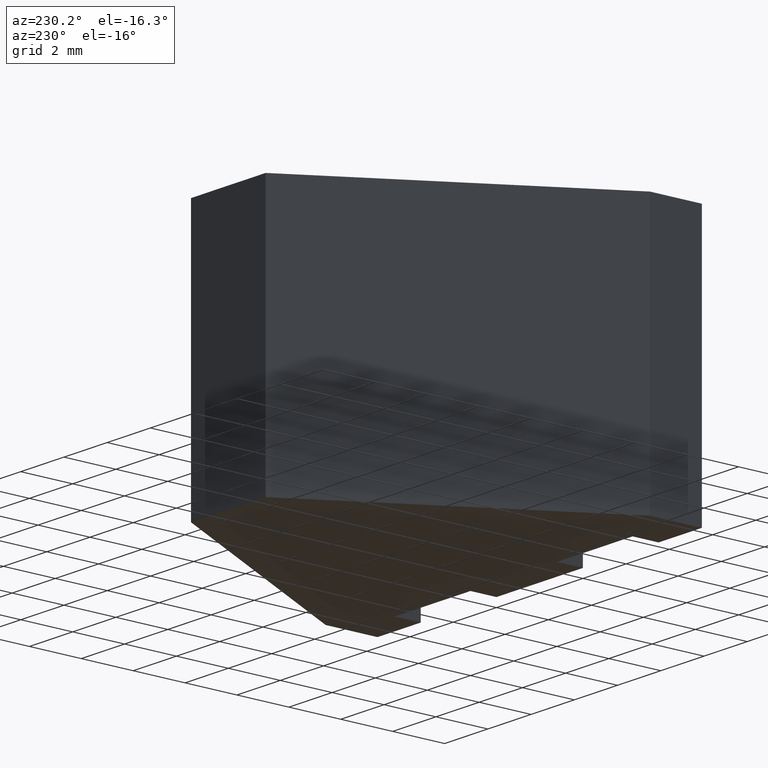
[diagram: clean part render]
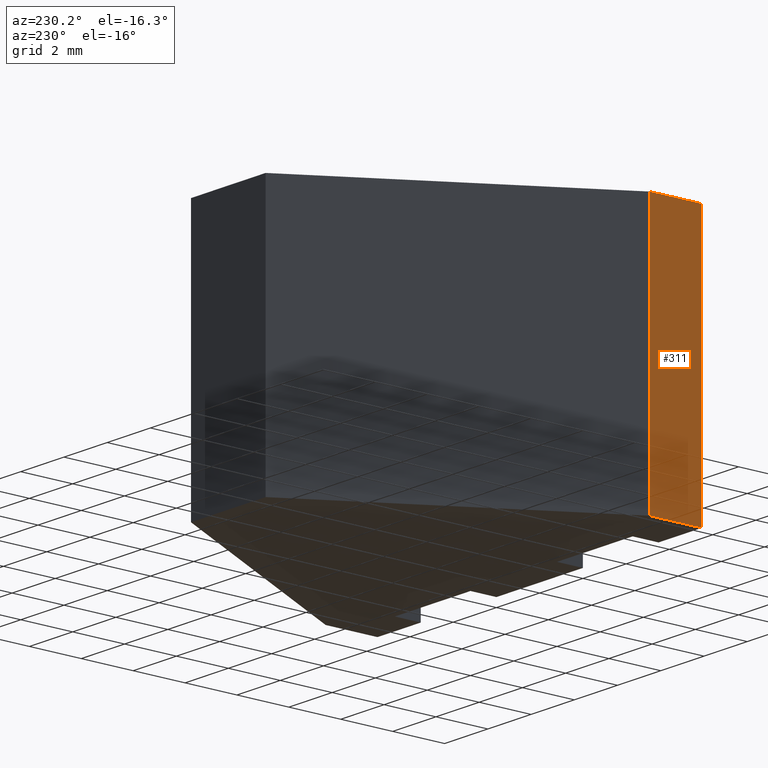
[diagram: same view with one face highlighted and labeled with its STEP entity id]
A machine part, auxiliary view. The second image highlights one B-rep face of the part: STEP entity #311.
In plain terms, the highlighted planar face has unit normal (-1, 0, 0).
Its self-contained STEP definition (entity closure, byte-faithful):
#25=FACE_OUTER_BOUND('',#41,.T.);
#41=EDGE_LOOP('',(#248,#249,#250,#251));
#58=LINE('',#457,#100);
#78=LINE('',#496,#120);
#79=LINE('',#499,#121);
#80=LINE('',#500,#122);
#100=VECTOR('',#371,10.);
#120=VECTOR('',#407,10.);
#121=VECTOR('',#410,10.);
#122=VECTOR('',#411,10.);
#142=VERTEX_POINT('',#454);
#143=VERTEX_POINT('',#456);
#154=VERTEX_POINT('',#494);
#155=VERTEX_POINT('',#498);
#170=EDGE_CURVE('',#143,#142,#58,.T.);
#190=EDGE_CURVE('',#154,#142,#78,.T.);
#191=EDGE_CURVE('',#154,#155,#79,.T.);
#192=EDGE_CURVE('',#155,#143,#80,.T.);
#248=ORIENTED_EDGE('',*,*,#191,.T.);
#249=ORIENTED_EDGE('',*,*,#192,.T.);
#250=ORIENTED_EDGE('',*,*,#170,.T.);
#251=ORIENTED_EDGE('',*,*,#190,.F.);
#295=PLANE('',#350);
#311=ADVANCED_FACE('',(#25),#295,.T.);
#350=AXIS2_PLACEMENT_3D('',#497,#408,#409);
#371=DIRECTION('',(0.,-1.,0.));
#407=DIRECTION('',(0.,0.,-1.));
#408=DIRECTION('center_axis',(-1.,0.,0.));
#409=DIRECTION('ref_axis',(0.,0.,1.));
#410=DIRECTION('',(0.,1.,0.));
#411=DIRECTION('',(0.,0.,-1.));
#454=CARTESIAN_POINT('',(-7.5,0.,-5.));
#456=CARTESIAN_POINT('',(-7.5,2.,-5.));
#457=CARTESIAN_POINT('',(-7.5,0.,-5.));
#494=CARTESIAN_POINT('',(-7.5,0.,5.));
#496=CARTESIAN_POINT('',(-7.5,0.,0.));
#497=CARTESIAN_POINT('Origin',(-7.5,0.,0.));
#498=CARTESIAN_POINT('',(-7.5,2.,5.));
#499=CARTESIAN_POINT('',(-7.5,0.,5.));
#500=CARTESIAN_POINT('',(-7.5,2.,0.));